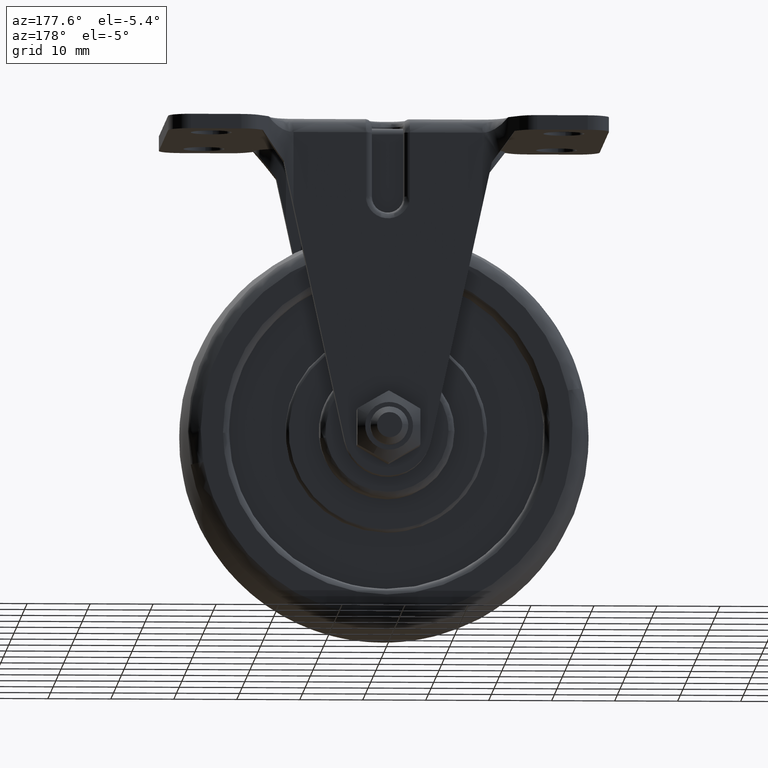
[diagram: clean part render]
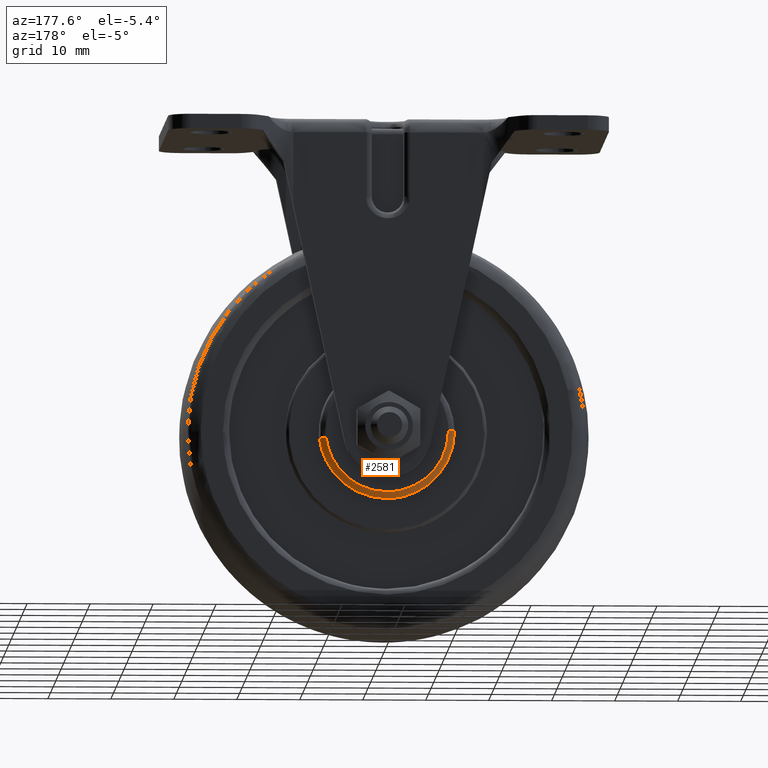
[diagram: same view with one face highlighted and labeled with its STEP entity id]
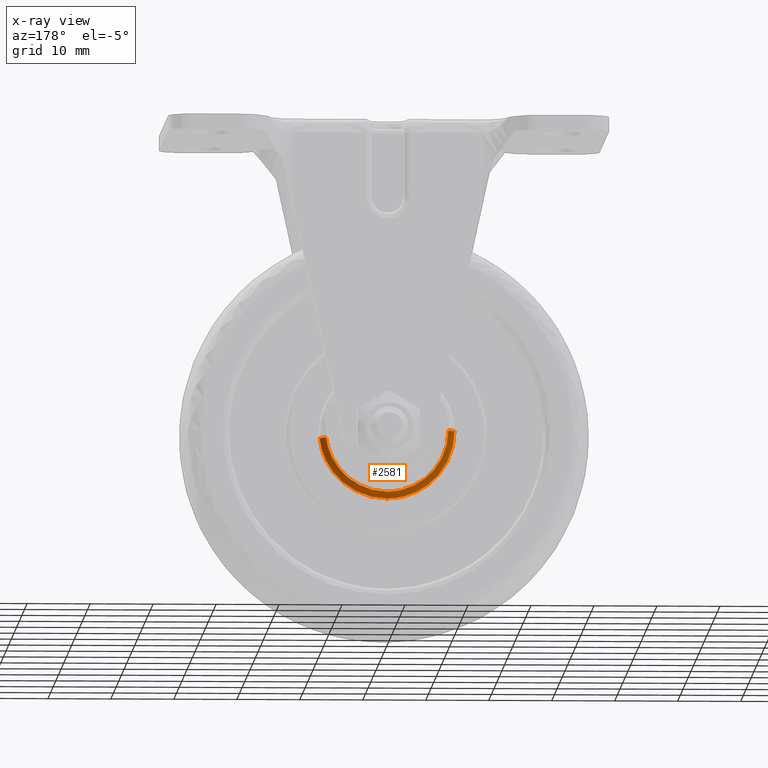
[diagram: x-ray of the same camera — body ghosted, the highlighted face saturated]
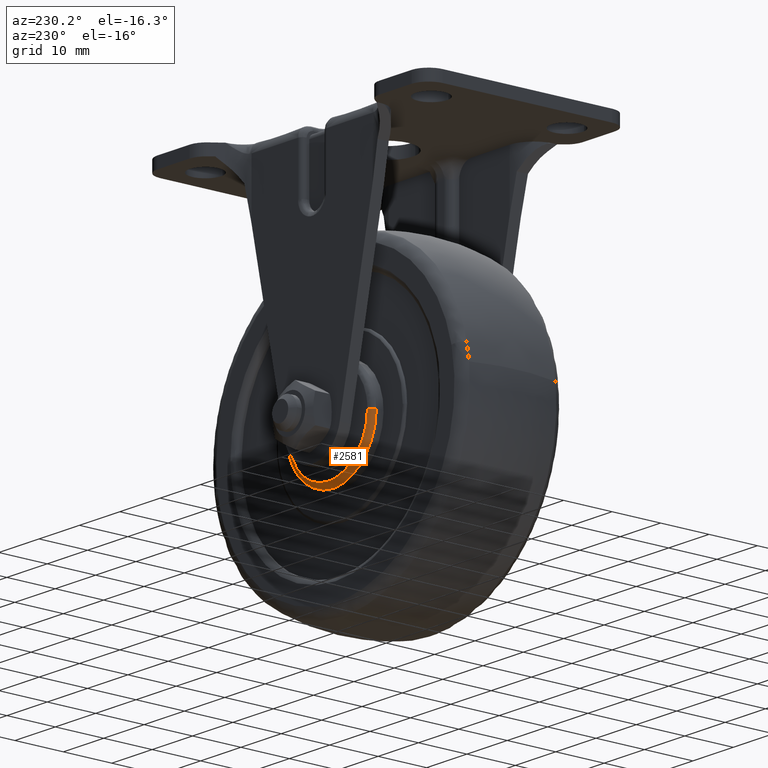
[diagram: same view with one face highlighted and labeled with its STEP entity id]
A machine part, auxiliary view. The second image highlights one B-rep face of the part: STEP entity #2581.
The next image is the same camera in x-ray: the body ghosted, the highlighted face saturated — about 0% of this face is hidden behind the body in this view.
A second angle (auxiliary view) of the same face is appended — the face is thin or edge-on in the first view.
In plain terms, the highlighted face is a freeform B-spline surface patch.
Its self-contained STEP definition (entity closure, byte-faithful):
#716=CARTESIAN_POINT('',(-10.750000000000000,11.000000001116369,2.213999E-014));
#717=VERTEX_POINT('',#716);
#731=CARTESIAN_POINT('',(0.0,11.0,-10.750000000000000));
#732=VERTEX_POINT('',#731);
#733=CARTESIAN_POINT('',(-10.749999999999998,11.000000001116369,2.213999E-014));
#734=CARTESIAN_POINT('',(-10.750000000000041,11.000000000000002,-10.749999999999998));
#735=CARTESIAN_POINT('',(0.0,11.0,-10.750000000000000));
#743=(BOUNDED_CURVE()B_SPLINE_CURVE(2,(#733,#734,#735),.UNSPECIFIED.,.F.,.U.)B_SPLINE_CURVE_WITH_KNOTS((3,3),(0.749999999999999,1.0),.UNSPECIFIED.)CURVE()GEOMETRIC_REPRESENTATION_ITEM()RATIONAL_B_SPLINE_CURVE((1.000000000000002,0.707106781186547,1.0))REPRESENTATION_ITEM(''));
#744=EDGE_CURVE('',#717,#732,#743,.T.);
#746=CARTESIAN_POINT('',(10.678100116929841,11.000000001142510,-1.241240465350263));
#747=VERTEX_POINT('',#746);
#748=CARTESIAN_POINT('',(0.0,11.0,-10.750000000000000));
#749=CARTESIAN_POINT('',(9.572785783737627,11.000000000000002,-10.749999999999998));
#750=CARTESIAN_POINT('',(10.678100116929834,11.000000001142508,-1.241240465350262));
#758=(BOUNDED_CURVE()B_SPLINE_CURVE(2,(#748,#749,#750),.UNSPECIFIED.,.F.,.U.)B_SPLINE_CURVE_WITH_KNOTS((3,3),(0.0,0.229999999997332),.UNSPECIFIED.)CURVE()GEOMETRIC_REPRESENTATION_ITEM()RATIONAL_B_SPLINE_CURVE((1.0,0.730538238694750,0.956886118185408))REPRESENTATION_ITEM(''));
#759=EDGE_CURVE('',#732,#747,#758,.T.);
#2459=CARTESIAN_POINT('',(9.684788479464007,12.0,-1.125776236123942));
#2460=VERTEX_POINT('',#2459);
#2461=CARTESIAN_POINT('',(9.684788479464007,12.000000000000004,-1.125776236123942));
#2462=CARTESIAN_POINT('',(10.678100114669885,11.999999997355873,-1.241240465002205));
#2463=CARTESIAN_POINT('',(10.678100116929839,11.000000001142512,-1.241240465350262));
#2471=(BOUNDED_CURVE()B_SPLINE_CURVE(2,(#2461,#2462,#2463),.UNSPECIFIED.,.F.,.U.)B_SPLINE_CURVE_WITH_KNOTS((3,3),(-1.736413118335597,-0.276558720367872),.UNSPECIFIED.)CURVE()GEOMETRIC_REPRESENTATION_ITEM()RATIONAL_B_SPLINE_CURVE((0.850203275360403,0.599621900079545,0.845789311104058))REPRESENTATION_ITEM(''));
#2472=EDGE_CURVE('',#2460,#747,#2471,.T.);
#2491=CARTESIAN_POINT('',(-9.750000000484866,12.0,1.714766E-015));
#2492=VERTEX_POINT('',#2491);
#2506=CARTESIAN_POINT('',(-9.750000000484866,11.999999999999998,1.714766E-015));
#2507=CARTESIAN_POINT('',(-10.749999997767249,11.999999999030264,2.079633E-015));
#2508=CARTESIAN_POINT('',(-10.749999999999996,11.000000001116373,2.213999E-014));
#2516=(BOUNDED_CURVE()B_SPLINE_CURVE(2,(#2506,#2507,#2508),.UNSPECIFIED.,.F.,.U.)B_SPLINE_CURVE_WITH_KNOTS((3,3),(-1.736413120068531,-0.276558720314045),.UNSPECIFIED.)CURVE()GEOMETRIC_REPRESENTATION_ITEM()RATIONAL_B_SPLINE_CURVE((0.888510408702480,0.626638727826769,0.883897566328460))REPRESENTATION_ITEM(''));
#2517=EDGE_CURVE('',#2492,#717,#2516,.T.);
#2524=CARTESIAN_POINT('',(-9.680649190479311,11.997592334182070,2.327473E-015));
#2525=CARTESIAN_POINT('',(-9.680649190479313,11.997592334182068,-9.680649190479308));
#2526=CARTESIAN_POINT('',(-1.185498E-015,11.997592334182070,-9.680649190479311));
#2527=CARTESIAN_POINT('',(8.620537762738895,11.997592334182066,-9.680649190479310));
#2528=CARTESIAN_POINT('',(9.615901511898480,11.997592334182073,-1.117768698164456));
#2529=CARTESIAN_POINT('',(-10.827739303914530,12.077335958139576,2.397709E-015));
#2530=CARTESIAN_POINT('',(-10.827739303914530,12.077335958139576,-10.827739303914527));
#2531=CARTESIAN_POINT('',(-1.325972E-015,12.077335958139576,-10.827739303914528));
#2532=CARTESIAN_POINT('',(9.642011988853593,12.077335958139576,-10.827739303914528));
#2533=CARTESIAN_POINT('',(10.755319472308980,12.077335958139580,-1.250216574080959));
#2534=CARTESIAN_POINT('',(-10.747566304776672,10.930275774839703,2.392800E-015));
#2535=CARTESIAN_POINT('',(-10.747566304776676,10.930275774839703,-10.747566304776671));
#2536=CARTESIAN_POINT('',(-1.316154E-015,10.930275774839703,-10.747566304776671));
#2537=CARTESIAN_POINT('',(9.570618598490926,10.930275774839702,-10.747566304776671));
#2538=CARTESIAN_POINT('',(10.675682699149045,10.930275774839705,-1.240959460522666));
#2546=(BOUNDED_SURFACE()B_SPLINE_SURFACE(2,2,((#2524,#2529,#2534),(#2525,#2530,#2535),(#2526,#2531,#2536),(#2527,#2532,#2537),(#2528,#2533,#2538)),.UNSPECIFIED.,.F.,.F.,.U.)B_SPLINE_SURFACE_WITH_KNOTS((3,2,3),(3,3),(0.0,17.807150903770349,34.189729735239062),(0.0,1.822370659225235),.UNSPECIFIED.)GEOMETRIC_REPRESENTATION_ITEM()RATIONAL_B_SPLINE_SURFACE(((0.915966720612989,0.599412876740432,0.910892958147065),(0.647686279486648,0.423848909873695,0.644098587640864),(0.915966720612989,0.599412876740432,0.910892958147065),(0.669148714776755,0.437894027223034,0.665442137281360),(0.876475839679191,0.573569860817648,0.871620826808552)))REPRESENTATION_ITEM('')SURFACE());
#2547=ORIENTED_EDGE('',*,*,#759,.F.);
#2548=ORIENTED_EDGE('',*,*,#744,.F.);
#2549=ORIENTED_EDGE('',*,*,#2517,.F.);
#2550=CARTESIAN_POINT('',(0.0,12.0,-9.749999999999998));
#2551=VERTEX_POINT('',#2550);
#2552=CARTESIAN_POINT('',(-9.750000000484866,12.000000000000004,1.714766E-015));
#2553=CARTESIAN_POINT('',(-9.749999999999977,12.000000000000002,-9.749999999999996));
#2554=CARTESIAN_POINT('',(0.0,12.0,-9.749999999999998));
#2562=(BOUNDED_CURVE()B_SPLINE_CURVE(2,(#2552,#2553,#2554),.UNSPECIFIED.,.F.,.U.)B_SPLINE_CURVE_WITH_KNOTS((3,3),(0.750000000000000,1.0),.UNSPECIFIED.)CURVE()GEOMETRIC_REPRESENTATION_ITEM()RATIONAL_B_SPLINE_CURVE((0.999999999999999,0.707106781186548,1.0))REPRESENTATION_ITEM(''));
#2563=EDGE_CURVE('',#2492,#2551,#2562,.T.);
#2564=ORIENTED_EDGE('',*,*,#2563,.T.);
#2565=CARTESIAN_POINT('',(0.0,12.0,-9.749999999999998));
#2566=CARTESIAN_POINT('',(8.682294083004363,12.0,-9.749999999999998));
#2567=CARTESIAN_POINT('',(9.684788479464007,11.999999999999996,-1.125776236123942));
#2575=(BOUNDED_CURVE()B_SPLINE_CURVE(2,(#2565,#2566,#2567),.UNSPECIFIED.,.F.,.U.)B_SPLINE_CURVE_WITH_KNOTS((3,3),(0.0,0.229999999998871),.UNSPECIFIED.)CURVE()GEOMETRIC_REPRESENTATION_ITEM()RATIONAL_B_SPLINE_CURVE((1.0,0.730538238692946,0.956886118188438))REPRESENTATION_ITEM(''));
#2576=EDGE_CURVE('',#2551,#2460,#2575,.T.);
#2577=ORIENTED_EDGE('',*,*,#2576,.T.);
#2578=ORIENTED_EDGE('',*,*,#2472,.T.);
#2579=EDGE_LOOP('',(#2547,#2548,#2549,#2564,#2577,#2578));
#2580=FACE_OUTER_BOUND('',#2579,.T.);
#2581=ADVANCED_FACE('',(#2580),#2546,.T.);